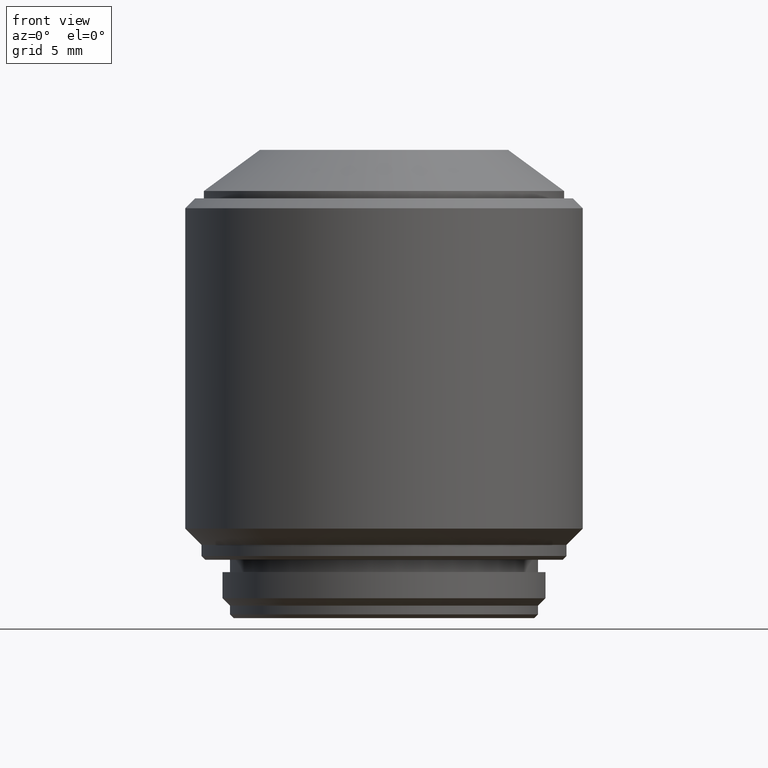
[diagram: clean part render]
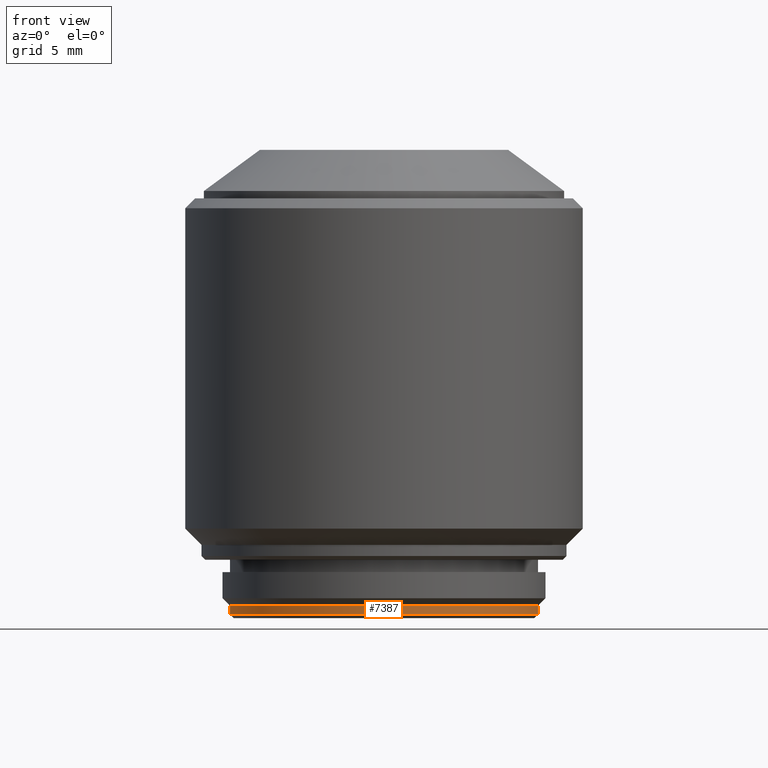
[diagram: same view with one face highlighted and labeled with its STEP entity id]
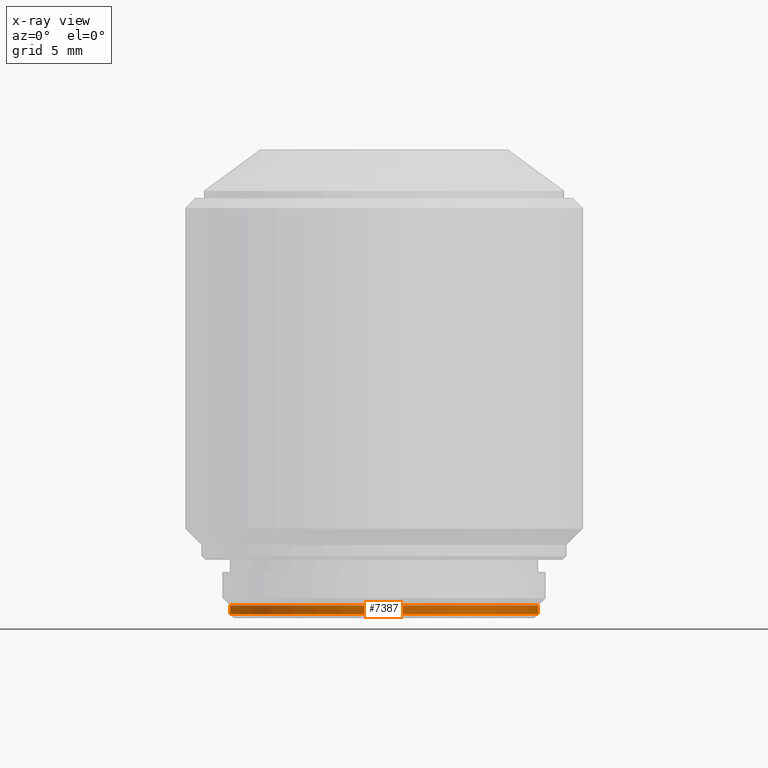
[diagram: x-ray of the same camera — body ghosted, the highlighted face saturated]
A machine part, front view. The second image highlights one B-rep face of the part: STEP entity #7387.
The next image is the same camera in x-ray: the body ghosted, the highlighted face saturated — about 0% of this face is hidden behind the body in this view.
In plain terms, the highlighted cylindrical surface (partial cylindrical patch) has radius 12.4 mm, axis along (0, 0, -1).
Its self-contained STEP definition (entity closure, byte-faithful):
#654 = LINE ( 'NONE', #6974, #10726 ) ;
#935 = ORIENTED_EDGE ( 'NONE', *, *, #23778, .F. ) ;
#1378 = VERTEX_POINT ( 'NONE', #10586 ) ;
#2031 = CIRCLE ( 'NONE', #20132, 12.40000000000000036 ) ;
#3512 = ORIENTED_EDGE ( 'NONE', *, *, #13348, .T. ) ;
#4417 = EDGE_CURVE ( 'NONE', #6935, #1378, #12234, .T. ) ;
#5055 = DIRECTION ( 'NONE',  ( 0.000000000000000000, 0.000000000000000000, -1.000000000000000000 ) ) ;
#5395 = AXIS2_PLACEMENT_3D ( 'NONE', #13424, #5055, #19368 ) ;
#5498 = ORIENTED_EDGE ( 'NONE', *, *, #4417, .T. ) ;
#5795 = DIRECTION ( 'NONE',  ( 1.000000000000000000, 0.000000000000000000, 0.000000000000000000 ) ) ;
#6935 = VERTEX_POINT ( 'NONE', #21779 ) ;
#6974 = CARTESIAN_POINT ( 'NONE',  ( -12.40000000000000036, 0.000000000000000000, 1.000000000000000000 ) ) ;
#7387 = ADVANCED_FACE ( 'NONE', ( #9370 ), #9230, .T. ) ;
#7617 = CARTESIAN_POINT ( 'NONE',  ( 0.000000000000000000, 0.000000000000000000, 1.000000000000000000 ) ) ;
#9230 = CYLINDRICAL_SURFACE ( 'NONE', #5395, 12.40000000000000036 ) ;
#9370 = FACE_OUTER_BOUND ( 'NONE', #24013, .T. ) ;
#10168 = DIRECTION ( 'NONE',  ( -1.000000000000000000, 0.000000000000000000, 0.000000000000000000 ) ) ;
#10586 = CARTESIAN_POINT ( 'NONE',  ( 12.40000000000000213, 0.000000000000000000, 0.3000000000000049849 ) ) ;
#10702 = VECTOR ( 'NONE', #13083, 1000.000000000000000 ) ;
#10726 = VECTOR ( 'NONE', #17373, 1000.000000000000000 ) ;
#12234 = CIRCLE ( 'NONE', #22573, 12.40000000000000036 ) ;
#12513 = VERTEX_POINT ( 'NONE', #20241 ) ;
#13083 = DIRECTION ( 'NONE',  ( 0.000000000000000000, 0.000000000000000000, -1.000000000000000000 ) ) ;
#13348 = EDGE_CURVE ( 'NONE', #12513, #22335, #2031, .T. ) ;
#13424 = CARTESIAN_POINT ( 'NONE',  ( 0.000000000000000000, 0.000000000000000000, 1.000000000000000000 ) ) ;
#13507 = DIRECTION ( 'NONE',  ( 0.000000000000000000, 0.000000000000000000, 1.000000000000000000 ) ) ;
#15868 = DIRECTION ( 'NONE',  ( 0.000000000000000000, 0.000000000000000000, -1.000000000000000000 ) ) ;
#16589 = CARTESIAN_POINT ( 'NONE',  ( -12.40000000000000036, 1.555301434917138433E-15, 1.000000000000000000 ) ) ;
#16997 = CARTESIAN_POINT ( 'NONE',  ( 12.40000000000000036, 1.518562030942717967E-15, 1.000000000000000000 ) ) ;
#17373 = DIRECTION ( 'NONE',  ( 0.000000000000000000, 0.000000000000000000, -1.000000000000000000 ) ) ;
#18957 = ORIENTED_EDGE ( 'NONE', *, *, #19306, .T. ) ;
#19306 = EDGE_CURVE ( 'NONE', #22335, #6935, #654, .T. ) ;
#19368 = DIRECTION ( 'NONE',  ( -1.000000000000000000, 0.000000000000000000, 0.000000000000000000 ) ) ;
#20132 = AXIS2_PLACEMENT_3D ( 'NONE', #7617, #15868, #10168 ) ;
#20241 = CARTESIAN_POINT ( 'NONE',  ( 12.40000000000000036, 0.000000000000000000, 1.000000000000000000 ) ) ;
#21779 = CARTESIAN_POINT ( 'NONE',  ( -12.40000000000000213, 1.518562030942718164E-15, 0.3000000000000049849 ) ) ;
#22003 = CARTESIAN_POINT ( 'NONE',  ( 0.000000000000000000, 0.000000000000000000, 0.3000000000000049849 ) ) ;
#22335 = VERTEX_POINT ( 'NONE', #16589 ) ;
#22573 = AXIS2_PLACEMENT_3D ( 'NONE', #22003, #13507, #5795 ) ;
#23337 = LINE ( 'NONE', #16997, #10702 ) ;
#23778 = EDGE_CURVE ( 'NONE', #12513, #1378, #23337, .T. ) ;
#24013 = EDGE_LOOP ( 'NONE', ( #935, #3512, #18957, #5498 ) ) ;